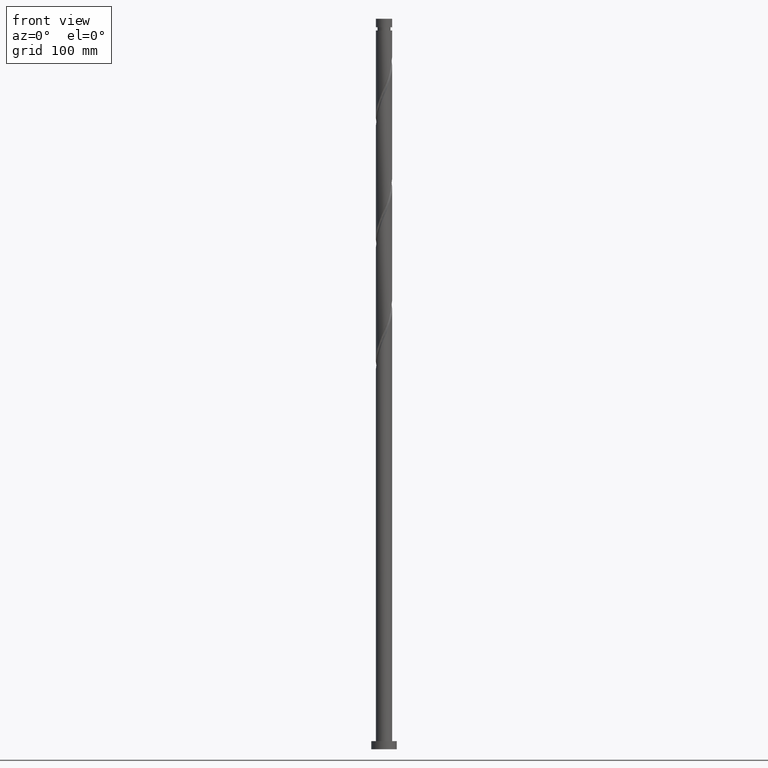
[diagram: clean part render]
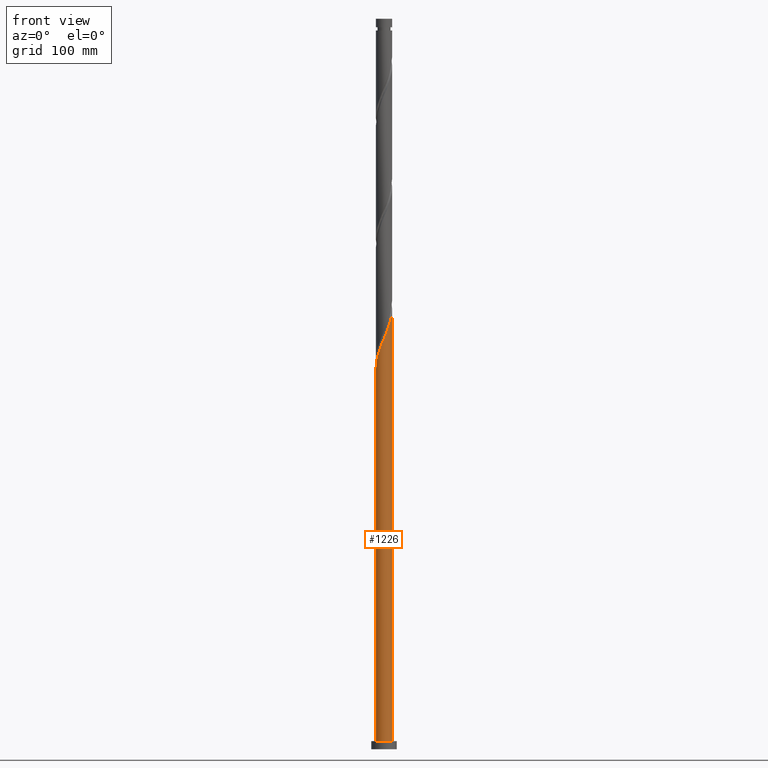
[diagram: same view with one face highlighted and labeled with its STEP entity id]
A machine part, front view. The second image highlights one B-rep face of the part: STEP entity #1226.
In plain terms, the highlighted cylindrical surface (edge-blend (fillet) strip) has radius 7 mm, axis along (-0, -0, -1).
Its self-contained STEP definition (entity closure, byte-faithful):
#26 = CARTESIAN_POINT ( 'NONE',  ( 5.268170654856896284, -4.654795265821401351, 368.1610394584862433 ) ) ;
#39 = CARTESIAN_POINT ( 'NONE',  ( 3.230916837831621979, -6.243550064060094940, 361.9845688702507687 ) ) ;
#50 = DIRECTION ( 'NONE',  ( -0.000000000000000000, -0.000000000000000000, -1.000000000000000000 ) ) ;
#70 = CARTESIAN_POINT ( 'NONE',  ( 0.1087425470572634945, -6.999155310354216120, 354.2639806349567380 ) ) ;
#75 = EDGE_CURVE ( 'NONE', #887, #2178, #932, .T. ) ;
#99 = EDGE_CURVE ( 'NONE', #888, #887, #1138, .T. ) ;
#100 = ORIENTED_EDGE ( 'NONE', *, *, #789, .F. ) ;
#183 = CARTESIAN_POINT ( 'NONE',  ( 2.629785931500610019, -6.487235617308932056, 360.4404512231919853 ) ) ;
#192 = LINE ( 'NONE', #1716, #1511 ) ;
#204 = CARTESIAN_POINT ( 'NONE',  ( -5.918804784004604969, -3.793216437833846211, 337.2786865173095521 ) ) ;
#217 = CARTESIAN_POINT ( 'NONE',  ( -7.000000000000007994, -0.3781398857548624037, 328.6579263863928873 ) ) ;
#228 = CARTESIAN_POINT ( 'NONE',  ( -3.592125691453332603, -6.008047354740226886, 344.9992747526036965 ) ) ;
#286 = CARTESIAN_POINT ( 'NONE',  ( 7.000000000000010658, 6.602924597865742714E-15, 380.2540071543803037 ) ) ;
#298 = CARTESIAN_POINT ( 'NONE',  ( -7.000000000000000888, 0.000000000000000000, 630.0000000000000000 ) ) ;
#307 = CARTESIAN_POINT ( 'NONE',  ( -7.000000000000000888, 0.000000000000000000, 7.000000000000000000 ) ) ;
#364 = CARTESIAN_POINT ( 'NONE',  ( 1.392982411949275079, -6.860000000000008313, 357.3522159290744185 ) ) ;
#456 = DIRECTION ( 'NONE',  ( 0.000000000000000000, 0.000000000000000000, 1.000000000000000000 ) ) ;
#473 = AXIS2_PLACEMENT_3D ( 'NONE', #2040, #1227, #1724 ) ;
#475 = VECTOR ( 'NONE', #590, 1000.000000000000000 ) ;
#549 = CYLINDRICAL_SURFACE ( 'NONE', #473, 7.000000000000000888 ) ;
#571 = CARTESIAN_POINT ( 'NONE',  ( -6.216916180193686969, -3.217134316196028632, 335.7345688702507687 ) ) ;
#590 = DIRECTION ( 'NONE',  ( -0.000000000000000000, -0.000000000000000000, -1.000000000000000000 ) ) ;
#707 = CARTESIAN_POINT ( 'NONE',  ( -7.000000000000008882, 1.347474657754501805E-14, 327.7540071543801901 ) ) ;
#716 = CARTESIAN_POINT ( 'NONE',  ( 6.761725868623641666, -1.810818399946827251, 375.8816276937802172 ) ) ;
#744 = CARTESIAN_POINT ( 'NONE',  ( 0.7573097987289522104, -6.989078829442246565, 355.8080982820154645 ) ) ;
#760 = EDGE_CURVE ( 'NONE', #1617, #2178, #192, .T. ) ;
#778 = CARTESIAN_POINT ( 'NONE',  ( 7.000000000000010658, 6.602924597865742714E-15, 380.2540071543803037 ) ) ;
#789 = EDGE_CURVE ( 'NONE', #888, #1617, #941, .T. ) ;
#872 = CARTESIAN_POINT ( 'NONE',  ( 3.777035245235271788, -5.893556206251933105, 363.5286865173096089 ) ) ;
#881 = CARTESIAN_POINT ( 'NONE',  ( 4.795662153747907830, -5.099178807132584978, 366.6169218114271757 ) ) ;
#887 = VERTEX_POINT ( 'NONE', #307 ) ;
#888 = VERTEX_POINT ( 'NONE', #1379 ) ;
#894 = CARTESIAN_POINT ( 'NONE',  ( -6.702208247472152713, -2.020001140474035228, 332.6463335761330882 ) ) ;
#904 = CARTESIAN_POINT ( 'NONE',  ( -5.519914488767829752, -4.304711841307283571, 338.8228041643683355 ) ) ;
#913 = CARTESIAN_POINT ( 'NONE',  ( -6.959264651295736570, -0.7540792486375301751, 329.5580982820155214 ) ) ;
#932 = CIRCLE ( 'NONE', #1681, 7.000000000000000888 ) ;
#941 =( BOUNDED_CURVE ( )  B_SPLINE_CURVE ( 2, ( #707, #217, #913, #1397, #894, #2085, #571, #204, #904, #1079, #1261, #2064, #228, #1726, #1914, #1069, #1589, #1249, #70, #744, #364, #1038, #183, #39, #872, #1553, #881, #26, #1387, #1213, #1048, #1565, #716, #1779, #1791, #1964, #778 ),
 .UNSPECIFIED., .F., .T. ) 
 B_SPLINE_CURVE_WITH_KNOTS ( ( 3, 2, 2, 2, 2, 2, 2, 2, 2, 2, 2, 2, 2, 2, 2, 2, 2, 2, 3 ),
 ( 0.05452935731629057758, 0.05882352941176471894, 0.06617647058823528106, 0.07352941176470584317, 0.08088235294117651630, 0.08823529411764707842, 0.09558823529411764053, 0.1029411764705882026, 0.1102941176470588758, 0.1176470588235294379, 0.1250000000000000000, 0.1323529411764705621, 0.1397058823529411242, 0.1470588235294117974, 0.1544117647058823595, 0.1617647058823529216, 0.1691176470588234837, 0.1764705882352941568, 0.1795293573162905498 ),
 .UNSPECIFIED. ) 
 CURVE ( )  GEOMETRIC_REPRESENTATION_ITEM ( )  RATIONAL_B_SPLINE_CURVE ( ( 0.9072066346053117014, 0.9068261157890789015, 0.9090909090909501389, 0.9052128875409812814, 0.9090909090909501389, 0.9052128875409812814, 0.9090909090909501389, 0.9052128875409812814, 0.9090909090909501389, 0.9052128875409812814, 0.9090909090909501389, 0.9052128875409812814, 0.9090909090909501389, 0.9052128875409812814, 0.9090909090909501389, 0.9052128875409812814, 0.9090909090909501389, 0.9052128875409812814, 0.9090909090909501389, 0.9052128875409812814, 0.9090909090909501389, 0.9052128875409812814, 0.9090909090909501389, 0.9052128875409812814, 0.9090909090909501389, 0.9052128875409812814, 0.9090909090909501389, 0.9052128875409812814, 0.9090909090909501389, 0.9052128875409812814, 0.9090909090909501389, 0.9052128875409812814, 0.9090909090909501389, 0.9052128875409812814, 0.9090909090909501389, 0.9074776808428525188, 0.9072066346053118124 ) ) 
 REPRESENTATION_ITEM ( '' )  );
#975 = CARTESIAN_POINT ( 'NONE',  ( 7.000000000000000888, 8.572527594031474176E-16, 7.000000000000000000 ) ) ;
#1038 = CARTESIAN_POINT ( 'NONE',  ( 2.028655025169602499, -6.730921170557770949, 358.8963335761330313 ) ) ;
#1048 = CARTESIAN_POINT ( 'NONE',  ( 6.313857628450199933, -3.022449643527802987, 372.7933923996624799 ) ) ;
#1069 = CARTESIAN_POINT ( 'NONE',  ( -1.818576125090525242, -6.790693771085499542, 349.6316276937801604 ) ) ;
#1079 = CARTESIAN_POINT ( 'NONE',  ( -5.121024193531053648, -4.816207244780721375, 340.3669218114272326 ) ) ;
#1095 = ORIENTED_EDGE ( 'NONE', *, *, #99, .T. ) ;
#1128 = DIRECTION ( 'NONE',  ( 1.000000000000000000, 0.000000000000000000, 0.000000000000000000 ) ) ;
#1138 = LINE ( 'NONE', #298, #475 ) ;
#1213 = CARTESIAN_POINT ( 'NONE',  ( 6.033786423897991469, -3.607514713233052728, 371.2492747526037533 ) ) ;
#1226 = ADVANCED_FACE ( 'NONE', ( #1395 ), #549, .T. ) ;
#1227 = DIRECTION ( 'NONE',  ( -0.000000000000000000, -0.000000000000000000, -1.000000000000000000 ) ) ;
#1249 = CARTESIAN_POINT ( 'NONE',  ( -0.5398247046144251104, -7.009231791266188338, 352.7198629878977840 ) ) ;
#1261 = CARTESIAN_POINT ( 'NONE',  ( -4.634938729834698457, -5.245697567595605015, 341.9110394584861297 ) ) ;
#1302 = CARTESIAN_POINT ( 'NONE',  ( 0.000000000000000000, 0.000000000000000000, 7.000000000000000000 ) ) ;
#1379 = CARTESIAN_POINT ( 'NONE',  ( -7.000000000000008882, 1.347474657754501805E-14, 327.7540071543801901 ) ) ;
#1387 = CARTESIAN_POINT ( 'NONE',  ( 5.650978539377444321, -4.131154989527225929, 369.7051571055449131 ) ) ;
#1395 = FACE_OUTER_BOUND ( 'NONE', #1662, .T. ) ;
#1397 = CARTESIAN_POINT ( 'NONE',  ( -6.889388918561536457, -1.398950086389860736, 331.1022159290743616 ) ) ;
#1482 = ORIENTED_EDGE ( 'NONE', *, *, #75, .T. ) ;
#1511 = VECTOR ( 'NONE', #50, 1000.000000000000000 ) ;
#1553 = CARTESIAN_POINT ( 'NONE',  ( 4.323153652638920263, -5.543562348443774823, 365.0728041643683923 ) ) ;
#1559 = ORIENTED_EDGE ( 'NONE', *, *, #760, .F. ) ;
#1565 = CARTESIAN_POINT ( 'NONE',  ( 6.593928833002410173, -2.437384573822554579, 374.3375100467212633 ) ) ;
#1589 = CARTESIAN_POINT ( 'NONE',  ( -1.179200414852473733, -6.899962781175843496, 351.1757453408390006 ) ) ;
#1617 = VERTEX_POINT ( 'NONE', #286 ) ;
#1662 = EDGE_LOOP ( 'NONE', ( #1559, #100, #1095, #1482 ) ) ;
#1681 = AXIS2_PLACEMENT_3D ( 'NONE', #1302, #456, #1128 ) ;
#1716 = CARTESIAN_POINT ( 'NONE',  ( 7.000000000000000888, 8.572527594031474176E-16, 630.0000000000000000 ) ) ;
#1724 = DIRECTION ( 'NONE',  ( -1.000000000000000000, 0.000000000000000000, 0.000000000000000000 ) ) ;
#1726 = CARTESIAN_POINT ( 'NONE',  ( -3.035398116768320609, -6.340906819069967781, 346.5433923996625367 ) ) ;
#1779 = CARTESIAN_POINT ( 'NONE',  ( 6.929522904244873160, -1.184252226071106584, 377.4257453408390006 ) ) ;
#1791 = CARTESIAN_POINT ( 'NONE',  ( 6.979331644137407586, -0.5375219075929553725, 378.9698629878977272 ) ) ;
#1914 = CARTESIAN_POINT ( 'NONE',  ( -2.426987120929422481, -6.565800295077733217, 348.0875100467213201 ) ) ;
#1964 = CARTESIAN_POINT ( 'NONE',  ( 7.000000000000009770, -0.2691583152137700385, 379.6106014023204693 ) ) ;
#2040 = CARTESIAN_POINT ( 'NONE',  ( 0.000000000000000000, 0.000000000000000000, 630.0000000000000000 ) ) ;
#2064 = CARTESIAN_POINT ( 'NONE',  ( -4.148853266138343265, -5.675187890410491320, 343.4551571055448562 ) ) ;
#2085 = CARTESIAN_POINT ( 'NONE',  ( -6.515027576382769858, -2.641052194558210164, 334.1904512231920421 ) ) ;
#2178 = VERTEX_POINT ( 'NONE', #975 ) ;